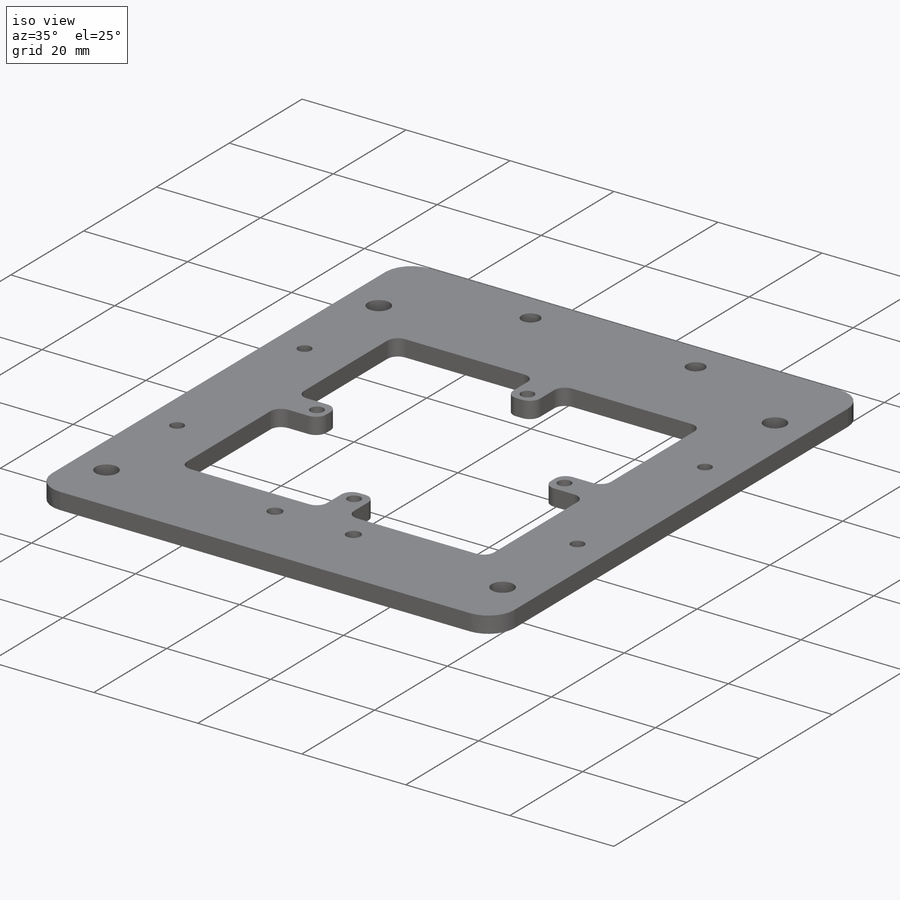
[diagram: iso view]
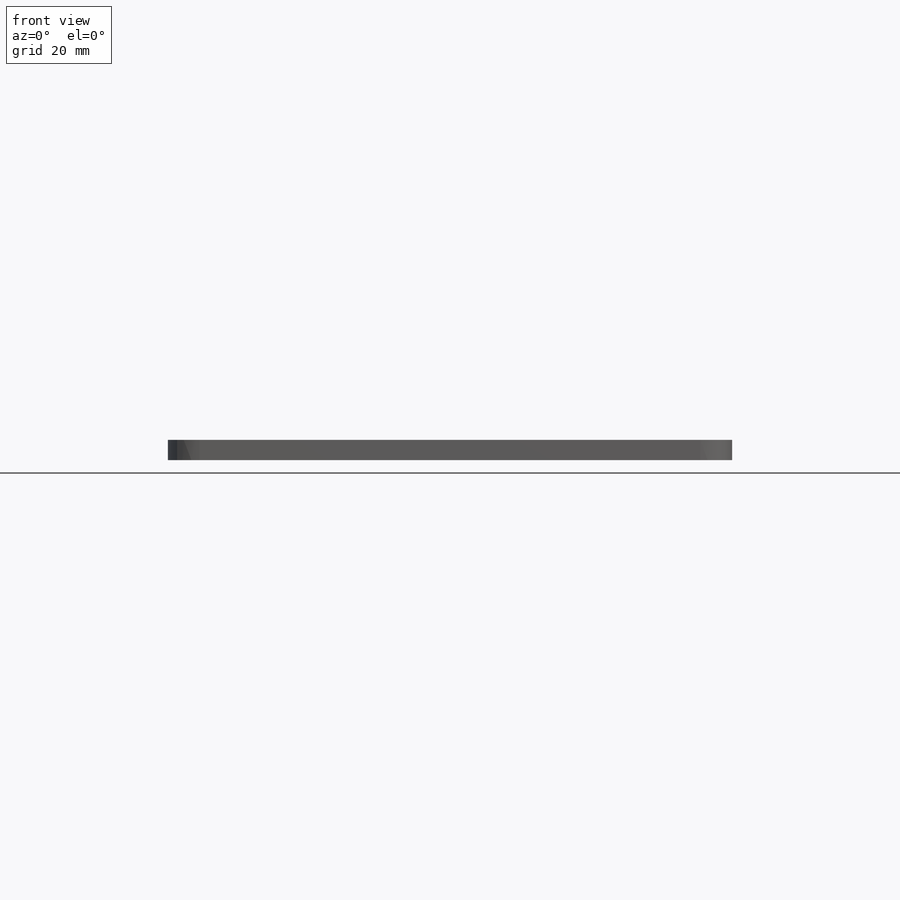
[diagram: front view]
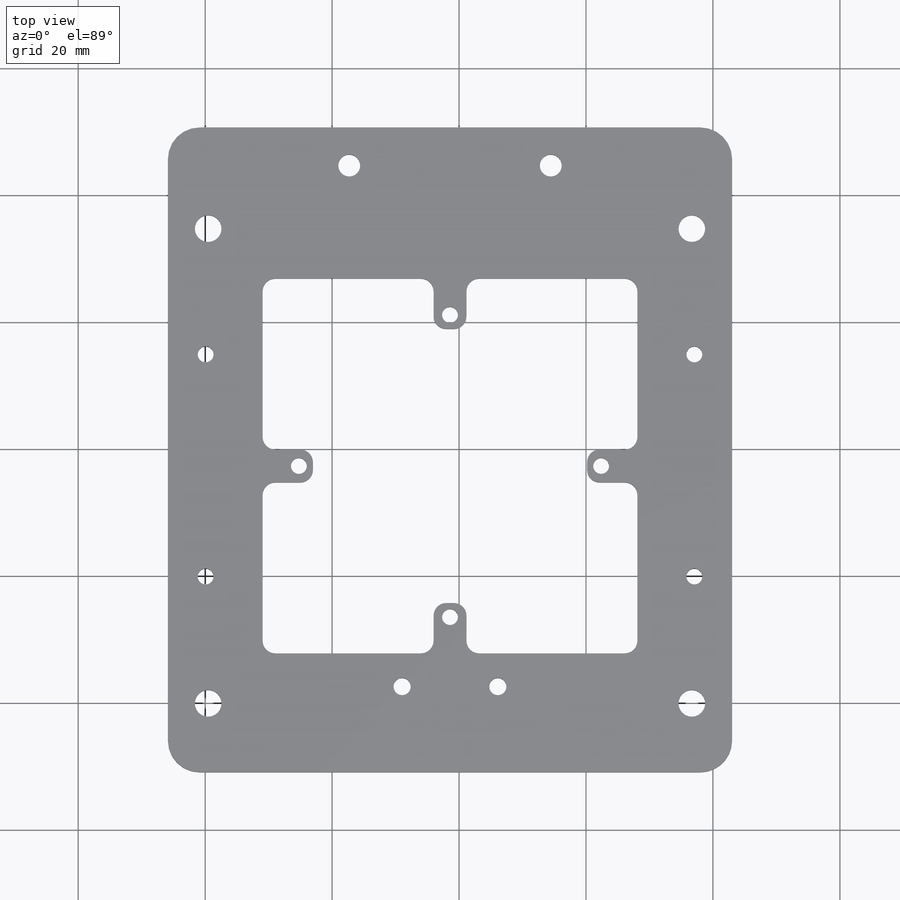
[diagram: top view]
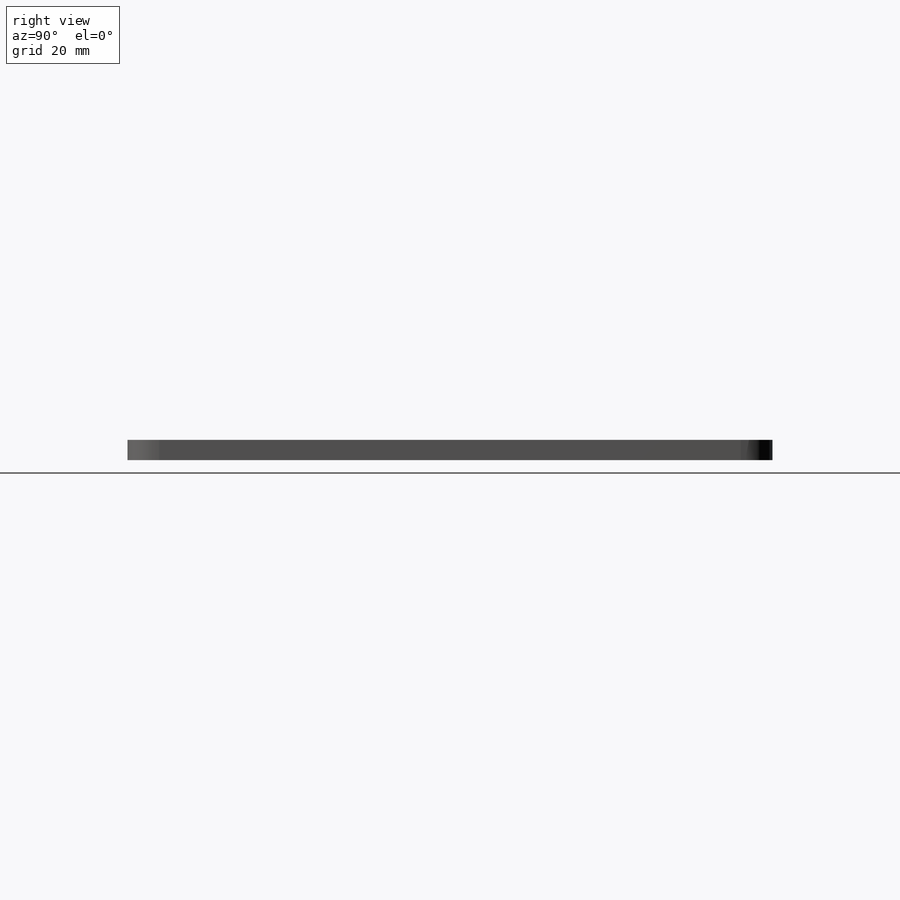
[diagram: right view]
SOLIDWORKS PART (.sldprt)
format: sldprt  version: not decoded by parser v0  size: 511,488 bytes
history: native  units: mm
features: sketch x12, hole x5, extrude x3, plane x2, pattern_circular x2, material x1, pattern_linear x1, cut_extrude x1 + 1 further entry (+10 scaffold rows collapsed)
feature tree (38):
  scaffold x10  (default folders/planes/origin — collapsed)
  material  "Material <not specified>"
  "Annotations"  RD1=47.62mm RD2=47.62mm RD3=9.999679mm RD4=43.18mm RD5=77mm RD6=70mm
  sketch  "Sketch2"  dims[c1.D11=3.0mm c1.D12=3.0mm c1.D13=3.0mm c1.D14=3.0mm c1.D15=3.0mm c1.D16=3.0mm c1.D17=3.0mm c1.D3=5.0mm c1.D1=~18.288828mm c1.D2=~18.392343mm c2.D3=~18.345146mm c2.D4=~18.241104mm c2.D5=~2.334743mm c2.D6=~2.436029mm c2.D7=~2.375739mm c2.D8=~2.487361mm c2.D9=43.18mm c2.D10=~42.855121mm c2.D18=88.9mm c2.D19=101.6mm c2.D20=~79.488568mm c2.D2=~47.625376mm c3.D3=~42.855121mm c3.D2=43.18mm c4.D3=~42.855121mm c4.D4=~13.408106mm c4.D5=~15.335979mm c4.D6=~13.408106mm c4.D7=44.45mm c4.D8=~15.335979mm c4.D10=~42.855121mm c5.D4=50.0mm c5.D5=~47.891276mm c5.D6=90.0deg c6.D5=43.18mm c6.D6=43.18mm c6.D8=101.6mm c6.D10=~52.514842mm c6.D4=48.26mm]
  extrude  "Aluminum plate"  Depth=3.175mm
  extrude  "Axis2"  [1 undecoded]
  plane  "Plane8"
  plane  "Plane10"
  extrude  "Axis8"  [1 undecoded]
  hole  "Tap Drill for M3x0.5 Tap1"  Diameter=2.5mm Depth=25.4mm
  sketch  "Sketch13"  dims[D1=5.95mm]
  sketch  "Sketch12"  dims[hole-wizard template sketch: 47 standard entries collapsed; hole parameters kept: c15.Hole Depth=25.4mm c15.D3=~14.816244mm c15.Drill Angle=118.0deg]
  pattern_linear  "LPattern1"  Count1=2 Count2=2 Spacing1=35mm Spacing2=77mm
  hole  "Tap Drill for M3x0.5 Tap2"  Diameter=2.5mm Depth=25.4mm
  sketch  "Sketch15"  dims[D1=23.81mm]
  sketch  "Sketch14"  dims[hole-wizard template sketch: 47 standard entries collapsed; hole parameters kept: c15.Hole Depth=25.4mm c15.D3=~14.816244mm c15.Drill Angle=118.0deg]
  pattern_circular  "CirPattern1"  Count=4 Angle=90deg
  hole  "Tap Drill for M5x0.8 Tap1"  Diameter=4.2mm Depth=25.4mm
  sketch  "Sketch17"  dims[c1.D1=~76.629861mm c1.D2=~76.199978mm c1.D3=~9.075759mm c1.D4=~9.505642mm c2.D3=~9.075759mm c2.D4=~9.505642mm c2.D5=~14.29438mm c2.D6=~14.29438mm c2.D7=~10.424482mm c2.D1=74.803mm c2.D2=74.803mm c3.D3=76.2mm c3.D4=76.2mm c3.D5=6.35mm c3.D6=10.8585mm c3.D7=6.35mm c3.D8=10.8585mm c3.D9=48.26mm]
  sketch  "Sketch16"  dims[hole-wizard template sketch: 47 standard entries collapsed; hole parameters kept: c15.Hole Depth=25.4mm c15.D3=~14.816244mm c15.Drill Angle=118.0deg]
  hole  "Tap Drill for #8-32 Tap1"  Diameter=3.4544mm Depth=12.7mm
  sketch  "Sketch19"  dims[c1.D1=31.75mm c1.D2=28.575mm c1.D3=5.08mm c1.D4=~24.654047mm c1.D5=~20.867241mm c1.D6=~78.48182mm c2.D5=~84.919718mm c2.D6=~88.280301mm c2.D3=6.0mm c2.D4=6.0mm c3.D3=6.0mm c3.D4=6.0mm]
  sketch  "Sketch18"  dims[hole-wizard template sketch: 50 standard entries collapsed; hole parameters above]
  sketch  "Sketch24"  dims[c1.D5=2.0mm c1.D3=2.0mm c1.D1=7.9375mm c1.D2=7.9375mm c2.D3=19.0mm c2.D4=19.0mm]
  cut_extrude  "Cut-Extrude1"  [1 undecoded]
  pattern_circular  "CirPattern3"  Count=4 Angle=90deg
  hole  "Tap Drill for #6-32 Tap1"  Diameter=2.7051mm Depth=12.7mm
  sketch  "Sketch26"  dims[c1.D1=~15.08125mm c1.D2=~36.909375mm c1.D3=87.0mm c1.D4=14.6mm c2.D3=13.5mm]
  sketch  "Sketch25"  dims[hole-wizard template sketch: 47 standard entries collapsed; hole parameters kept: c15.Hole Depth=12.7mm c15.D3=~14.816244mm c15.Drill Angle=118.0deg]
decode coverage: 21 of 24 modeling features carry decoded parameters; 1 rows unclassified (native names shown)
note: ~ marks probable driven/reference dimensions
note: 3 parameter values undecoded
summary: Diameter pulled from absorbed wizard sketch | no parameter record found for 3 features
note: suppression state not decoded; provenance and decode notes live in map.json
